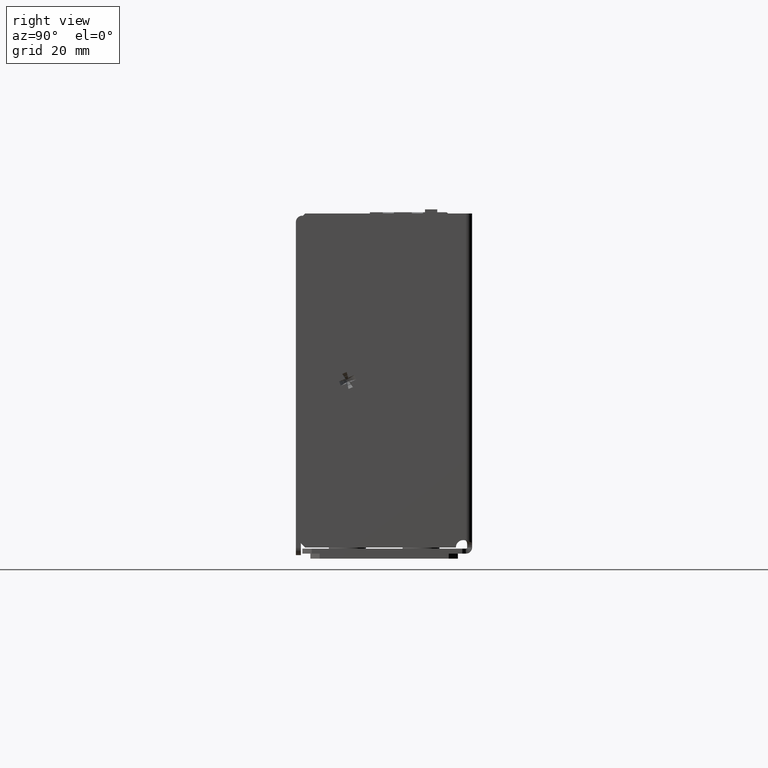
[diagram: clean part render]
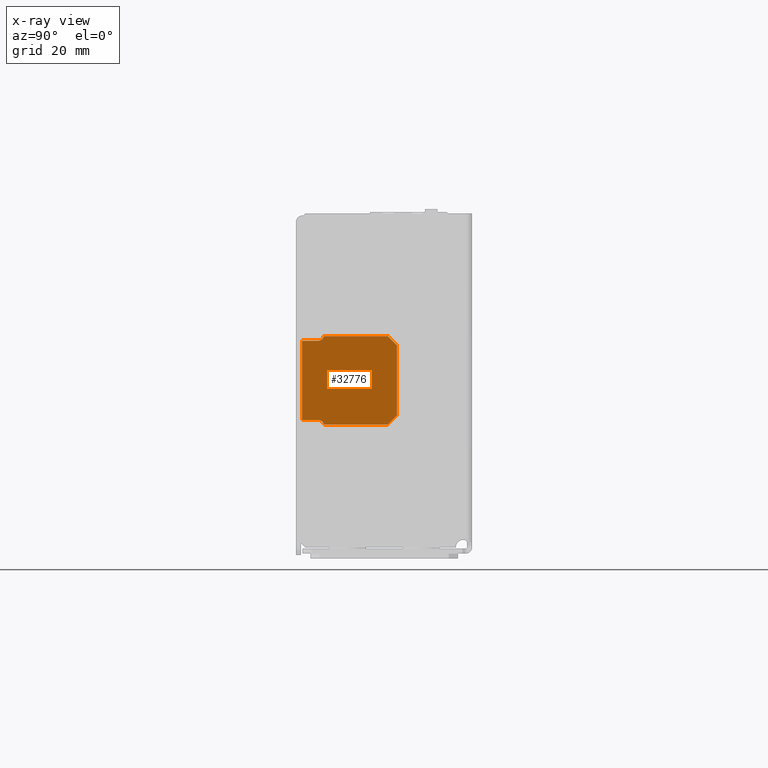
[diagram: x-ray — body ghosted, one internal face saturated and labeled with its STEP entity id]
A machine part, right view, then the same camera in x-ray: the body is ghosted and one INTERNAL B-rep face — a face not visible from any outside direction — is saturated and labeled: STEP entity #32776.
In plain terms, the highlighted planar face has unit normal (-1, 0, -0).
Its self-contained STEP definition (entity closure, byte-faithful):
#1587 = DIRECTION ( 'NONE',  ( -1.000000000000000000, -3.491481338843133400E-015, 0.0000000000000000000 ) ) ;
#1590 = CARTESIAN_POINT ( 'NONE',  ( -51.20640000000028600, 104.9019999974599100, -7.835899999999981000 ) ) ;
#1591 = FACE_OUTER_BOUND ( 'NONE', #17642, .T. ) ;
#1593 = FACE_BOUND ( 'NONE', #16762, .T. ) ;
#1596 = PLANE ( 'NONE',  #50675 ) ;
#1600 = DIRECTION ( 'NONE',  ( 0.0000000000000000000, 0.0000000000000000000, 1.000000000000000000 ) ) ;
#5956 = CARTESIAN_POINT ( 'NONE',  ( -51.20639999999988800, -8.890000000000043200, 0.0000000000000000000 ) ) ;
#5957 = DIRECTION ( 'NONE',  ( -1.000000000000000000, -3.491481338843133400E-015, 0.0000000000000000000 ) ) ;
#5958 = DIRECTION ( 'NONE',  ( 0.0000000000000000000, 0.0000000000000000000, 1.000000000000000000 ) ) ;
#15586 = CIRCLE ( 'NONE', #15590, 0.7493000000000082900 ) ;
#15590 = AXIS2_PLACEMENT_3D ( 'NONE', #5956, #5957, #5958 ) ;
#16762 = EDGE_LOOP ( 'NONE', ( #30373, #30376 ) ) ;
#17642 = EDGE_LOOP ( 'NONE', ( #30403, #30401, #30395, #30398, #30392, #30390, #30384, #30387, #30379, #30381 ) ) ;
#17974 = VERTEX_POINT ( 'NONE', #31602 ) ;
#18003 = VERTEX_POINT ( 'NONE', #31641 ) ;
#18013 = VERTEX_POINT ( 'NONE', #31654 ) ;
#18048 = VERTEX_POINT ( 'NONE', #31696 ) ;
#18052 = VERTEX_POINT ( 'NONE', #31700 ) ;
#18053 = VERTEX_POINT ( 'NONE', #31702 ) ;
#18075 = VERTEX_POINT ( 'NONE', #31735 ) ;
#18087 = VERTEX_POINT ( 'NONE', #31750 ) ;
#18091 = VERTEX_POINT ( 'NONE', #31756 ) ;
#18128 = VERTEX_POINT ( 'NONE', #31800 ) ;
#25169 = VECTOR ( 'NONE', #38476, 1000.000000000000000 ) ;
#25257 = VECTOR ( 'NONE', #39911, 1000.000000000000000 ) ;
#25434 = VECTOR ( 'NONE', #39896, 1000.000000000000100 ) ;
#25449 = VECTOR ( 'NONE', #39904, 1000.000000000000000 ) ;
#25493 = AXIS2_PLACEMENT_3D ( 'NONE', #38140, #38141, #38142 ) ;
#25569 = CIRCLE ( 'NONE', #25493, 0.7493000000000082900 ) ;
#25591 = VECTOR ( 'NONE', #39887, 1000.000000000000000 ) ;
#25876 = VECTOR ( 'NONE', #38459, 1000.000000000000100 ) ;
#25877 = AXIS2_PLACEMENT_3D ( 'NONE', #39859, #39860, #39861 ) ;
#25938 = VECTOR ( 'NONE', #38508, 1000.000000000000000 ) ;
#25991 = CIRCLE ( 'NONE', #26110, 1.016000000000003100 ) ;
#25993 = CIRCLE ( 'NONE', #25877, 1.015999999999994200 ) ;
#26110 = AXIS2_PLACEMENT_3D ( 'NONE', #38488, #38490, #38491 ) ;
#26161 = VECTOR ( 'NONE', #38501, 1000.000000000000000 ) ;
#29427 = EDGE_CURVE ( 'NONE', #18075, #18091, #25993, .T. ) ;
#29432 = EDGE_CURVE ( 'NONE', #18091, #18053, #39868, .T. ) ;
#29435 = EDGE_CURVE ( 'NONE', #18053, #18048, #39893, .T. ) ;
#29438 = EDGE_CURVE ( 'NONE', #18048, #18013, #39902, .T. ) ;
#29444 = EDGE_CURVE ( 'NONE', #17974, #18087, #39909, .T. ) ;
#29616 = EDGE_CURVE ( 'NONE', #42339, #42340, #25569, .T. ) ;
#29771 = EDGE_CURVE ( 'NONE', #18013, #18052, #38449, .T. ) ;
#29778 = EDGE_CURVE ( 'NONE', #18052, #18003, #38461, .T. ) ;
#29784 = EDGE_CURVE ( 'NONE', #18003, #18128, #25991, .T. ) ;
#29789 = EDGE_CURVE ( 'NONE', #18128, #17974, #38479, .T. ) ;
#29791 = EDGE_CURVE ( 'NONE', #18087, #18075, #38470, .T. ) ;
#30373 = ORIENTED_EDGE ( 'NONE', *, *, #29616, .T. ) ;
#30376 = ORIENTED_EDGE ( 'NONE', *, *, #37342, .T. ) ;
#30379 = ORIENTED_EDGE ( 'NONE', *, *, #29427, .F. ) ;
#30381 = ORIENTED_EDGE ( 'NONE', *, *, #29791, .F. ) ;
#30384 = ORIENTED_EDGE ( 'NONE', *, *, #29435, .F. ) ;
#30387 = ORIENTED_EDGE ( 'NONE', *, *, #29432, .F. ) ;
#30390 = ORIENTED_EDGE ( 'NONE', *, *, #29438, .F. ) ;
#30392 = ORIENTED_EDGE ( 'NONE', *, *, #29771, .F. ) ;
#30395 = ORIENTED_EDGE ( 'NONE', *, *, #29784, .F. ) ;
#30398 = ORIENTED_EDGE ( 'NONE', *, *, #29778, .F. ) ;
#30401 = ORIENTED_EDGE ( 'NONE', *, *, #29789, .F. ) ;
#30403 = ORIENTED_EDGE ( 'NONE', *, *, #29444, .F. ) ;
#31602 = CARTESIAN_POINT ( 'NONE',  ( -51.20639999999991700, -1.066799999999999700, 6.819899999999989000 ) ) ;
#31641 = CARTESIAN_POINT ( 'NONE',  ( -51.20639999999990300, -4.802795641084468800, 7.619999999999256700 ) ) ;
#31654 = CARTESIAN_POINT ( 'NONE',  ( -51.20639999999986000, -17.37359999999998900, 6.032500000000062800 ) ) ;
#31696 = CARTESIAN_POINT ( 'NONE',  ( -51.20639999999986000, -17.37359999999998900, -6.032499999999994400 ) ) ;
#31700 = CARTESIAN_POINT ( 'NONE',  ( -51.20639999999986000, -15.78609999999999800, 7.620000000000062300 ) ) ;
#31702 = CARTESIAN_POINT ( 'NONE',  ( -51.20639999999986000, -15.78609999999999800, -7.619999999999994800 ) ) ;
#31735 = CARTESIAN_POINT ( 'NONE',  ( -51.20639999999991000, -3.809999999045292200, -6.819899999999991600 ) ) ;
#31750 = CARTESIAN_POINT ( 'NONE',  ( -51.20639999999991000, -1.066800000000004900, -6.819899999999989900 ) ) ;
#31756 = CARTESIAN_POINT ( 'NONE',  ( -51.20639999999990300, -4.802795642039996000, -7.619999999999994800 ) ) ;
#31800 = CARTESIAN_POINT ( 'NONE',  ( -51.20639999999991000, -3.809999999045306400, 6.819900000000007600 ) ) ;
#32776 = ADVANCED_FACE ( 'NONE', ( #1591, #1593 ), #1596, .F. ) ;
#37342 = EDGE_CURVE ( 'NONE', #42340, #42339, #15586, .T. ) ;
#38140 = CARTESIAN_POINT ( 'NONE',  ( -51.20639999999988800, -8.890000000000043200, 0.0000000000000000000 ) ) ;
#38141 = DIRECTION ( 'NONE',  ( -1.000000000000000000, -3.491481338843133400E-015, 0.0000000000000000000 ) ) ;
#38142 = DIRECTION ( 'NONE',  ( 0.0000000000000000000, 0.0000000000000000000, 1.000000000000000000 ) ) ;
#38449 = LINE ( 'NONE', #38452, #25876 ) ;
#38452 = CARTESIAN_POINT ( 'NONE',  ( -51.20639999999986000, -17.37359999999998900, 6.032500000000062800 ) ) ;
#38459 = DIRECTION ( 'NONE',  ( -2.468850131082259000E-015, 0.7071067811865458000, 0.7071067811865492400 ) ) ;
#38461 = LINE ( 'NONE', #38474, #25169 ) ;
#38470 = LINE ( 'NONE', #38503, #25938 ) ;
#38474 = CARTESIAN_POINT ( 'NONE',  ( -51.20639999999986000, -15.78609999999999800, 7.620000000000062300 ) ) ;
#38476 = DIRECTION ( 'NONE',  ( -3.491481338843133700E-015, 1.000000000000000000, -7.336399213385616800E-014 ) ) ;
#38479 = LINE ( 'NONE', #38497, #26161 ) ;
#38488 = CARTESIAN_POINT ( 'NONE',  ( -51.20639999999991000, -3.809999997460018900, 7.835900000000010300 ) ) ;
#38490 = DIRECTION ( 'NONE',  ( 1.000000000000000000, 3.491481338843133400E-015, -0.0000000000000000000 ) ) ;
#38491 = DIRECTION ( 'NONE',  ( 0.0000000000000000000, 0.0000000000000000000, 1.000000000000000000 ) ) ;
#38497 = CARTESIAN_POINT ( 'NONE',  ( -51.20639999999991000, -3.809999999045306400, 6.819900000000009400 ) ) ;
#38501 = DIRECTION ( 'NONE',  ( -3.491481338843133400E-015, 1.000000000000000000, -7.518847691577054300E-015 ) ) ;
#38503 = CARTESIAN_POINT ( 'NONE',  ( -51.20639999999991000, -3.809999999045292200, -6.819899999999991600 ) ) ;
#38508 = DIRECTION ( 'NONE',  ( 3.491481338843133400E-015, -1.000000000000000000, -9.398559614471246900E-016 ) ) ;
#39859 = CARTESIAN_POINT ( 'NONE',  ( -51.20639999999991000, -3.809999998415393400, -7.835899999999988100 ) ) ;
#39860 = DIRECTION ( 'NONE',  ( 1.000000000000000000, 3.491481338843133400E-015, -0.0000000000000000000 ) ) ;
#39861 = DIRECTION ( 'NONE',  ( 0.0000000000000000000, 0.0000000000000000000, 1.000000000000000000 ) ) ;
#39868 = LINE ( 'NONE', #39886, #25591 ) ;
#39886 = CARTESIAN_POINT ( 'NONE',  ( -51.20639999999990300, -4.802795642039996000, -7.619999999999994800 ) ) ;
#39887 = DIRECTION ( 'NONE',  ( 3.491481338843133700E-015, -1.000000000000000000, 0.0000000000000000000 ) ) ;
#39893 = LINE ( 'NONE', #39895, #25434 ) ;
#39895 = CARTESIAN_POINT ( 'NONE',  ( -51.20639999999986000, -15.78609999999999800, -7.619999999999994800 ) ) ;
#39896 = DIRECTION ( 'NONE',  ( 2.468850131082258200E-015, -0.7071067811865455700, 0.7071067811865493500 ) ) ;
#39902 = LINE ( 'NONE', #39903, #25449 ) ;
#39903 = CARTESIAN_POINT ( 'NONE',  ( -51.20639999999986000, -17.37359999999998900, -6.032499999999994400 ) ) ;
#39904 = DIRECTION ( 'NONE',  ( 0.0000000000000000000, 0.0000000000000000000, 1.000000000000000000 ) ) ;
#39906 = CARTESIAN_POINT ( 'NONE',  ( -51.20639999999991700, -1.066799999999999700, -7.835899999999981000 ) ) ;
#39909 = LINE ( 'NONE', #39906, #25257 ) ;
#39911 = DIRECTION ( 'NONE',  ( -0.0000000000000000000, 0.0000000000000000000, -1.000000000000000000 ) ) ;
#42339 = VERTEX_POINT ( 'NONE', #43508 ) ;
#42340 = VERTEX_POINT ( 'NONE', #43509 ) ;
#43508 = CARTESIAN_POINT ( 'NONE',  ( -51.20639999999988800, -8.890000000000043200, 0.7493000000000082900 ) ) ;
#43509 = CARTESIAN_POINT ( 'NONE',  ( -51.20639999999988800, -8.890000000000045000, -0.7493000000000082900 ) ) ;
#50675 = AXIS2_PLACEMENT_3D ( 'NONE', #1590, #1587, #1600 ) ;